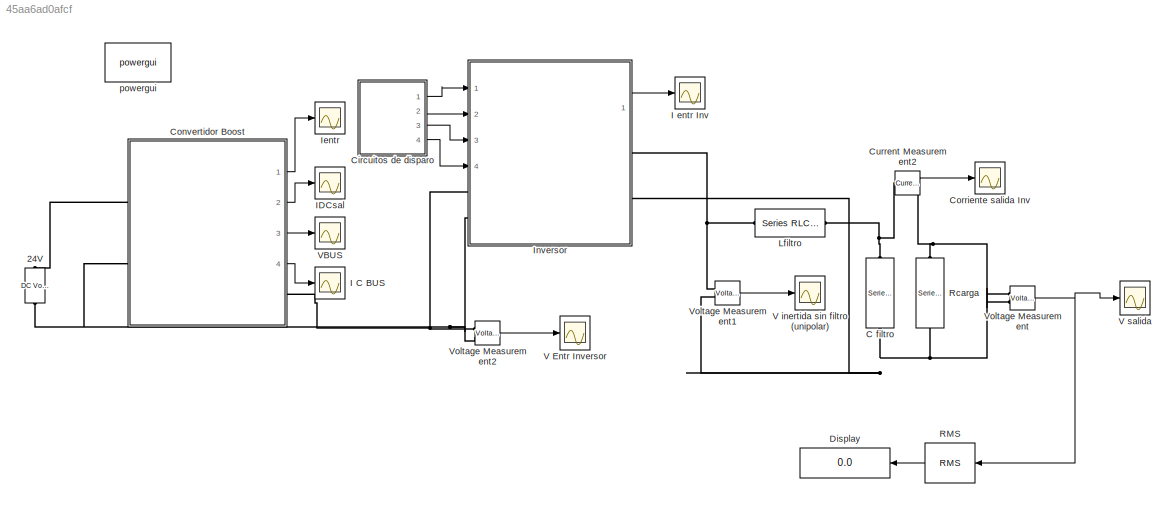
MODEL slx_45aa6ad0afcf
KIND model
BLOCK [Reference] 24V  REF=powerlib/Electrical
Sources/DC Voltage Source
  Amplitude = 24
  Measurements = None
  Ports = [0, 0, 0, 0, 0, 1, 1]
  SourceBlock = powerlib/Electrical\nSources/DC Voltage Source
  SourceType = DC Voltage Source
BLOCK [Reference] C filtro  REF=powerlib/Elements/Series RLC Branch
  BranchType = C
  Capacitance = 104.24e-9
  Inductance = 1e-3
  InitialCurrent = 0
  InitialVoltage = 0
  LConnTagsString = __new0
  Measurements = None
  Ports = [0, 0, 0, 0, 0, 1, 1]
  RConnTagsString = __new0
  Resistance = 1
  SetiL0 = off
  Setx0 = off
  SourceBlock = powerlib/Elements/Series RLC Branch
  SourceType = Series RLC Branch
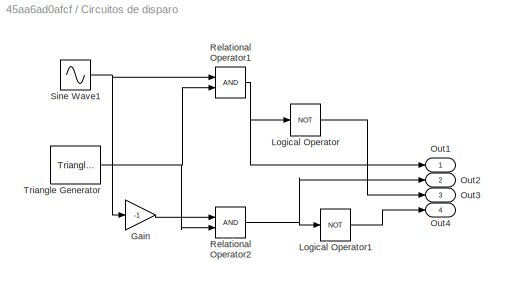
BLOCK [SubSystem] Circuitos de disparo
  FunctionWithSeparateData = off
  MaskHideContents = off
  MinAlgLoopOccurrences = off
  Opaque = off
  Ports = [0, 4]
  PropExecContextOutsideSubsystem = off
  RTWSystemCode = Auto
  RequestExecContextInheritance = off
BLOCK [Gain] Circuitos de disparo/Gain
  Gain = -1
  OutDataTypeStr = Inherit: Inherit via internal rule
  ParamDataTypeStr = Inherit: Inherit via internal rule
  SaturateOnIntegerOverflow = off
BLOCK [Logic] Circuitos de disparo/Logical Operator
  AllPortsSameDT = off
  Operator = NOT
  OutDataTypeStr = boolean
  Ports = [1, 1]
BLOCK [Logic] Circuitos de disparo/Logical Operator1
  AllPortsSameDT = off
  Operator = NOT
  OutDataTypeStr = boolean
  Ports = [1, 1]
BLOCK [Outport] Circuitos de disparo/Out1
  IconDisplay = Port number
BLOCK [Outport] Circuitos de disparo/Out2
  IconDisplay = Port number
  Port = 2
BLOCK [Outport] Circuitos de disparo/Out3
  IconDisplay = Port number
  Port = 3
BLOCK [Outport] Circuitos de disparo/Out4
  IconDisplay = Port number
  Port = 4
BLOCK [RelationalOperator] Circuitos de disparo/Relational Operator1
  InputSameDT = off
  OutDataTypeStr = boolean
  Ports = [2, 1]
BLOCK [RelationalOperator] Circuitos de disparo/Relational Operator2
  InputSameDT = off
  OutDataTypeStr = boolean
  Ports = [2, 1]
BLOCK [Sin] Circuitos de disparo/Sine Wave1
  Amplitude = 0.9
  Frequency = 2*pi*60
  Ports = [0, 1]
  SampleTime = 0
BLOCK [Reference] Circuitos de disparo/Triangle Generator  REF=powerlib_meascontrol/Pulse & Signal
Generators/Triangle
Generator
  Freq = 20000
  Phase = 90
  Ports = [0, 1]
  SourceBlock = powerlib_meascontrol/Pulse & Signal\nGenerators/Triangle\nGenerator
  SourceType = Triangle Generator
  Ts = 0
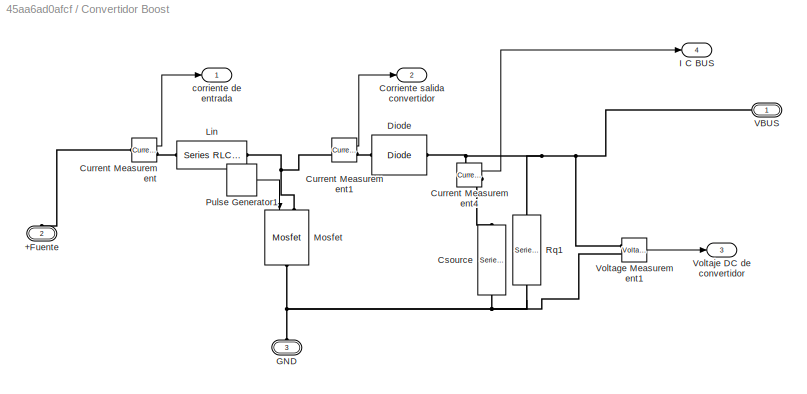
BLOCK [SubSystem] Convertidor Boost
  FunctionWithSeparateData = off
  MaskHideContents = off
  MinAlgLoopOccurrences = off
  Opaque = off
  Ports = [0, 4, 0, 0, 0, 2, 1]
  PropExecContextOutsideSubsystem = off
  RTWSystemCode = Auto
  RequestExecContextInheritance = off
BLOCK [PMIOPort] Convertidor Boost/+Fuente
  Port = 2
  Side = Left
BLOCK [Outport] Convertidor Boost/Corriente salida convertidor
  IconDisplay = Port number
  Port = 2
BLOCK [Reference] Convertidor Boost/Csource  REF=powerlib/Elements/Series RLC Branch
  BranchType = C
  Capacitance = 7.3142e-6
  Inductance = 1e-3
  InitialCurrent = 0
  InitialVoltage = 0
  LConnTagsString = __new0
  Measurements = None
  Ports = [0, 0, 0, 0, 0, 1, 1]
  RConnTagsString = __new0
  Resistance = 1
  SetiL0 = off
  Setx0 = off
  SourceBlock = powerlib/Elements/Series RLC Branch
  SourceType = Series RLC Branch
BLOCK [Reference] Convertidor Boost/Current Measurement  REF=powerlib/Measurements/Current Measurement
  OutputType = Complex
  PSBequivalent = 0
  PhasorSimulation = off
  Ports = [0, 1, 0, 0, 0, 1, 1]
  SourceBlock = powerlib/Measurements/Current Measurement
  SourceType = Current Measurement
BLOCK [Reference] Convertidor Boost/Current Measurement1  REF=powerlib/Measurements/Current Measurement
  OutputType = Complex
  PSBequivalent = 0
  PhasorSimulation = off
  Ports = [0, 1, 0, 0, 0, 1, 1]
  SourceBlock = powerlib/Measurements/Current Measurement
  SourceType = Current Measurement
BLOCK [Reference] Convertidor Boost/Current Measurement4  REF=powerlib/Measurements/Current Measurement
  OutputType = Complex
  PSBequivalent = 0
  PhasorSimulation = off
  Ports = [0, 1, 0, 0, 0, 1, 1]
  SourceBlock = powerlib/Measurements/Current Measurement
  SourceType = Current Measurement
BLOCK [Reference] Convertidor Boost/Diode  REF=powerlib/Power
Electronics/Diode
  Cs = 250e-9
  IC = 0
  Lon = 0
  Measurements = off
  Ports = [0, 0, 0, 0, 0, 1, 1]
  Ron = 0.001
  Rs = 500
  SourceBlock = powerlib/Power\nElectronics/Diode
  SourceType = Diode
  UseSnubber = off
  Vf = 0.2
BLOCK [PMIOPort] Convertidor Boost/GND
  Port = 3
  Side = Left
BLOCK [Outport] Convertidor Boost/I C BUS
  IconDisplay = Port number
  Port = 4
BLOCK [Reference] Convertidor Boost/Lin  REF=powerlib/Elements/Series RLC Branch
  BranchType = L
  Capacitance = 1e-6
  Inductance = 1.74658e-3
  InitialCurrent = 0
  InitialVoltage = 0
  LConnTagsString = __new0
  Measurements = None
  Ports = [0, 0, 0, 0, 0, 1, 1]
  RConnTagsString = __new0
  Resistance = 1
  SetiL0 = off
  Setx0 = off
  SourceBlock = powerlib/Elements/Series RLC Branch
  SourceType = Series RLC Branch
BLOCK [Reference] Convertidor Boost/Mosfet  REF=powerlib/Power
Electronics/Mosfet
  Cs = inf
  IC = 0
  Lon = 0
  Measurements = off
  Ports = [1, 0, 0, 0, 0, 1, 1]
  Rd = 0.0001
  Ron = 0.001
  Rs = 1e6
  SourceBlock = powerlib/Power\nElectronics/Mosfet
  SourceType = Mosfet
  Vfd = 0
BLOCK [DiscretePulseGenerator] Convertidor Boost/Pulse Generator1
  Period = 1/20000
  Ports = [0, 1]
  PulseType = Time based
  PulseWidth = 85
BLOCK [Reference] Convertidor Boost/Rq1  REF=powerlib/Elements/Series RLC Branch
  BranchType = R
  Capacitance = 1e-6
  Inductance = 1e-3
  InitialCurrent = 0
  InitialVoltage = 0
  LConnTagsString = __new0
  Measurements = None
  Ports = [0, 0, 0, 0, 0, 1, 1]
  RConnTagsString = __new0
  Resistance = 494
  SetiL0 = off
  Setx0 = off
  SourceBlock = powerlib/Elements/Series RLC Branch
  SourceType = Series RLC Branch
BLOCK [PMIOPort] Convertidor Boost/VBUS
  Port = 1
  Side = Right
BLOCK [Reference] Convertidor Boost/Voltage Measurement1  REF=powerlib/Measurements/Voltage Measurement
  OutputType = Complex
  PSBequivalent = 0
  PhasorSimulation = off
  Ports = [0, 1, 0, 0, 0, 2]
  SourceBlock = powerlib/Measurements/Voltage Measurement
  SourceType = Voltage Measurement
BLOCK [Outport] Convertidor Boost/Voltaje DC de convertidor
  IconDisplay = Port number
  Port = 3
BLOCK [Outport] Convertidor Boost/corriente de entrada
  IconDisplay = Port number
BLOCK [Scope] Corriente salida Inv
  Floating = off
  MaxDataPoints = 500000
  NumInputPorts = 1
  Ports = [1]
  SampleTime = 0
  SaveName = ScopeData5
  SaveToWorkspace = on
  ShowLegends = off
BLOCK [Reference] Current Measurement2  REF=powerlib/Measurements/Current Measurement
  OutputType = Complex
  PSBequivalent = 0
  PhasorSimulation = off
  Ports = [0, 1, 0, 0, 0, 1, 1]
  SourceBlock = powerlib/Measurements/Current Measurement
  SourceType = Current Measurement
BLOCK [Display] Display
  Decimation = 1
  Lockdown = off
  Ports = [1]
BLOCK [Scope] I C BUS
  Floating = off
  MaxDataPoints = 5000000
  NumInputPorts = 1
  Ports = [1]
  SampleTime = 0
  SaveName = ScopeData7
  SaveToWorkspace = on
  ShowLegends = off
  TimeRange = 0.004770167640737899
  YMax = 199.7217120353623
  YMin = 198.7058285790732
BLOCK [Scope] I entr Inv
  Floating = off
  MaxDataPoints = 500000
  NumInputPorts = 1
  Ports = [1]
  SampleTime = 0
  SaveName = ScopeData4
  SaveToWorkspace = on
  ShowLegends = off
BLOCK [Scope] IDCsal
  Floating = off
  MaxDataPoints = 500000
  NumInputPorts = 1
  Ports = [1]
  SampleTime = 0
  SaveName = ScopeData3
  SaveToWorkspace = on
  ShowLegends = off
BLOCK [Scope] Ientr
  Floating = off
  MaxDataPoints = 500000
  NumInputPorts = 1
  Ports = [1]
  SampleTime = 0
  SaveName = ScopeData2
  SaveToWorkspace = on
  ShowLegends = off
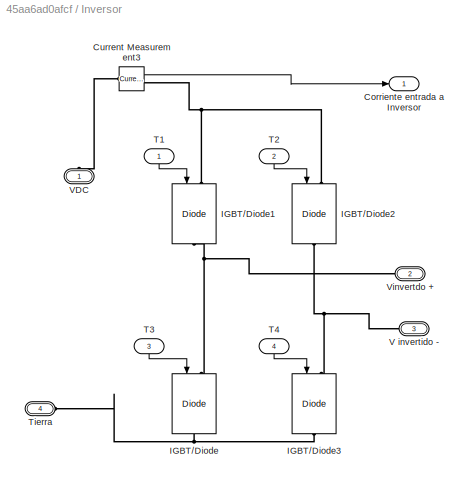
BLOCK [SubSystem] Inversor
  FunctionWithSeparateData = off
  MaskHideContents = off
  MinAlgLoopOccurrences = off
  Opaque = off
  Ports = [4, 1, 0, 0, 0, 2, 2]
  PropExecContextOutsideSubsystem = off
  RTWSystemCode = Auto
  RequestExecContextInheritance = off
BLOCK [Outport] Inversor/Corriente entrada a Inversor
  IconDisplay = Port number
BLOCK [Reference] Inversor/Current Measurement3  REF=powerlib/Measurements/Current Measurement
  OutputType = Complex
  PSBequivalent = 0
  PhasorSimulation = off
  Ports = [0, 1, 0, 0, 0, 1, 1]
  SourceBlock = powerlib/Measurements/Current Measurement
  SourceType = Current Measurement
BLOCK [Reference] Inversor/IGBT//Diode  REF=powerlib/Power
Electronics/IGBT//Diode
  Cs = inf
  Measurements = off
  Ports = [1, 0, 0, 0, 0, 1, 1]
  Ron = 1e-3
  Rs = 1e5
  SourceBlock = powerlib/Power\nElectronics/IGBT//Diode
  SourceType = IGBT/Diode
BLOCK [Reference] Inversor/IGBT//Diode1  REF=powerlib/Power
Electronics/IGBT//Diode
  Cs = inf
  Measurements = off
  Ports = [1, 0, 0, 0, 0, 1, 1]
  Ron = 1e-3
  Rs = 1e5
  SourceBlock = powerlib/Power\nElectronics/IGBT//Diode
  SourceType = IGBT/Diode
BLOCK [Reference] Inversor/IGBT//Diode2  REF=powerlib/Power
Electronics/IGBT//Diode
  Cs = inf
  Measurements = off
  Ports = [1, 0, 0, 0, 0, 1, 1]
  Ron = 1e-3
  Rs = 1e5
  SourceBlock = powerlib/Power\nElectronics/IGBT//Diode
  SourceType = IGBT/Diode
BLOCK [Reference] Inversor/IGBT//Diode3  REF=powerlib/Power
Electronics/IGBT//Diode
  Cs = inf
  Measurements = off
  Ports = [1, 0, 0, 0, 0, 1, 1]
  Ron = 1e-3
  Rs = 1e5
  SourceBlock = powerlib/Power\nElectronics/IGBT//Diode
  SourceType = IGBT/Diode
BLOCK [Inport] Inversor/T1
  IconDisplay = Port number
BLOCK [Inport] Inversor/T2
  IconDisplay = Port number
  Port = 2
BLOCK [Inport] Inversor/T3
  IconDisplay = Port number
  Port = 3
BLOCK [Inport] Inversor/T4
  IconDisplay = Port number
  Port = 4
BLOCK [PMIOPort] Inversor/Tierra
  Port = 4
  Side = Left
BLOCK [PMIOPort] Inversor/V invertido -
  Port = 3
  Side = Right
BLOCK [PMIOPort] Inversor/VDC
  Port = 1
  Side = Left
BLOCK [PMIOPort] Inversor/Vinvertdo +
  Port = 2
  Side = Right
BLOCK [Reference] Lfiltro  REF=powerlib/Elements/Series RLC Branch
  BranchType = L
  Capacitance = 1e-6
  Inductance = 0.3
  InitialCurrent = 0
  InitialVoltage = 0
  LConnTagsString = __new0
  Measurements = None
  Ports = [0, 0, 0, 0, 0, 1, 1]
  RConnTagsString = __new0
  Resistance = 1
  SetiL0 = off
  Setx0 = off
  SourceBlock = powerlib/Elements/Series RLC Branch
  SourceType = Series RLC Branch
BLOCK [Reference] RMS  REF=powerlib_meascontrol/Measurements/RMS
  Freq = 60
  Ports = [1, 1]
  RMSInit = 120
  SourceBlock = powerlib_meascontrol/Measurements/RMS
  SourceType = RMS
  TrueRMS = on
  Ts = 0
BLOCK [Reference] Rcarga  REF=powerlib/Elements/Series RLC Branch
  BranchType = RL
  Capacitance = 1e-6
  Inductance = 1.1836
  InitialCurrent = 0
  InitialVoltage = 0
  LConnTagsString = __new0
  Measurements = None
  Ports = [0, 0, 0, 0, 0, 1, 1]
  RConnTagsString = __new0
  Resistance = 720
  SetiL0 = off
  Setx0 = off
  SourceBlock = powerlib/Elements/Series RLC Branch
  SourceType = Series RLC Branch
BLOCK [Scope] V Entr Inversor
  Floating = off
  MaxDataPoints = 500000
  NumInputPorts = 1
  Ports = [1]
  SampleTime = 0
  SaveName = ScopeData6
  SaveToWorkspace = on
  ShowLegends = off
BLOCK [Scope] V inertida sin filtro (unipolar)
  Floating = off
  MaxDataPoints = 500000
  NumInputPorts = 1
  Ports = [1]
  SampleTime = 0
  SaveName = ScopeData8
  SaveToWorkspace = on
  ShowLegends = off
BLOCK [Scope] V salida
  Floating = off
  MaxDataPoints = 500000
  NumInputPorts = 1
  Ports = [1]
  SampleTime = 0
  SaveToWorkspace = on
  ShowLegends = off
BLOCK [Scope] VBUS
  Floating = off
  MaxDataPoints = 5000000
  NumInputPorts = 1
  Ports = [1]
  SampleTime = 0
  SaveName = ScopeData1
  SaveToWorkspace = on
  ShowLegends = off
  TimeRange = 0.004770167640737899
  YMax = 199.7217120353623
  YMin = 198.7058285790732
BLOCK [Reference] Voltage Measurement  REF=powerlib/Measurements/Voltage Measurement
  OutputType = Complex
  PSBequivalent = 0
  PhasorSimulation = off
  Ports = [0, 1, 0, 0, 0, 2]
  SourceBlock = powerlib/Measurements/Voltage Measurement
  SourceType = Voltage Measurement
BLOCK [Reference] Voltage Measurement1  REF=powerlib/Measurements/Voltage Measurement
  OutputType = Complex
  PSBequivalent = 0
  PhasorSimulation = off
  Ports = [0, 1, 0, 0, 0, 2]
  SourceBlock = powerlib/Measurements/Voltage Measurement
  SourceType = Voltage Measurement
BLOCK [Reference] Voltage Measurement2  REF=powerlib/Measurements/Voltage Measurement
  OutputType = Complex
  PSBequivalent = 0
  PhasorSimulation = off
  Ports = [0, 1, 0, 0, 0, 2]
  SourceBlock = powerlib/Measurements/Voltage Measurement
  SourceType = Voltage Measurement
BLOCK [Reference] powergui  REF=powerlib/powergui
  DisableRonSwitches = off
  DisableSnubberDevices = off
  DisableVfSwitches = off
  DisplayEquations = off
  DisplayStyle = 1
  EnableUseOfTLC = off
  ErrMax = 1e-4
  Frange = [0:2:500]
  FreqAxis = off
  FunctionMessages = off
  HookPort = off
  Interpol = off
  Iterations = 50
  MaxFrequency = 1000
  Pbase = 100e6
  Ports = []
  Priority = 1
  ResistiveCurrentMeasurement = off
  RestoreLinks = warning
  RmsSteady = 1
  SPID = off
  SampleTime = 2e-6
  ShowGrid = off
  SolverType = Tustin
  SourceBlock = powerlib/powergui
  SourceType = PSB option menu block
  StartTime = 0.0
  SwTol = 0
  Ts = 0
  UnitsV = kV
  UnitsW = MW
  UserDataPersistent = on
  Xlog = on
  Ylog = off
  ZoomFFT = off
  cycles = 1
  display = off
  echomessages = off
  frequency = 60
  frequencyindice = 0
  frequencyindicesteady = 1
  fundamental = 60
  methode = off
  save = off
  variable = ZData
  x0status = blocks
LINE Circuitos de disparo/Gain:1 -> Circuitos de disparo/Relational Operator2:1
LINE Circuitos de disparo/Logical Operator1:1 -> Circuitos de disparo/Out4:1
LINE Circuitos de disparo/Logical Operator:1 -> Circuitos de disparo/Out3:1
NET Circuitos de disparo/Relational Operator1:1 -> Circuitos de disparo/Logical Operator:1, Circuitos de disparo/Out1:1
NET Circuitos de disparo/Relational Operator2:1 -> Circuitos de disparo/Logical Operator1:1, Circuitos de disparo/Out2:1
NET Circuitos de disparo/Sine Wave1:1 -> Circuitos de disparo/Gain:1, Circuitos de disparo/Relational Operator1:1
NET Circuitos de disparo/Triangle Generator:1 -> Circuitos de disparo/Relational Operator1:2, Circuitos de disparo/Relational Operator2:2
LINE Circuitos de disparo:1 -> Inversor:1
LINE Circuitos de disparo:2 -> Inversor:2
LINE Circuitos de disparo:3 -> Inversor:3
LINE Circuitos de disparo:4 -> Inversor:4
LINE Convertidor Boost/Current Measurement1:1 -> Convertidor Boost/Corriente salida convertidor:1
LINE Convertidor Boost/Current Measurement4:1 -> Convertidor Boost/I C BUS:1
LINE Convertidor Boost/Current Measurement:1 -> Convertidor Boost/corriente de entrada:1
LINE Convertidor Boost/Pulse Generator1:1 -> Convertidor Boost/Mosfet:1
LINE Convertidor Boost/Voltage Measurement1:1 -> Convertidor Boost/Voltaje DC de convertidor:1
LINE Convertidor Boost:1 -> Ientr:1
LINE Convertidor Boost:2 -> IDCsal:1
LINE Convertidor Boost:3 -> VBUS:1
LINE Convertidor Boost:4 -> I C BUS:1
LINE Current Measurement2:1 -> Corriente salida Inv:1
LINE Inversor/Current Measurement3:1 -> Inversor/Corriente entrada a Inversor:1
LINE Inversor/T1:1 -> Inversor/IGBT//Diode1:1
LINE Inversor/T2:1 -> Inversor/IGBT//Diode2:1
LINE Inversor/T3:1 -> Inversor/IGBT//Diode:1
LINE Inversor/T4:1 -> Inversor/IGBT//Diode3:1
LINE Inversor:1 -> I entr Inv:1
LINE RMS:1 -> Display:1
LINE Voltage Measurement1:1 -> V inertida sin filtro (unipolar):1
LINE Voltage Measurement2:1 -> V Entr Inversor:1
NET Voltage Measurement:1 -> RMS:1, V salida:1
PNET net1: 24V:LConn1 -- Convertidor Boost:LConn2 -- Inversor:LConn2 -- Voltage Measurement2:LConn2
PLINE 24V:RConn1 -- Convertidor Boost:LConn1
PNET net2: C filtro:LConn1 -- Current Measurement2:LConn1 -- Lfiltro:RConn1
PNET net3: C filtro:RConn1 -- Inversor:RConn2 -- Rcarga:RConn1 -- Voltage Measurement1:LConn2 -- Voltage Measurement:LConn2
PLINE Convertidor Boost/+Fuente:RConn1 -- Convertidor Boost/Current Measurement:LConn1
PLINE Convertidor Boost/Csource:LConn1 -- Convertidor Boost/Current Measurement4:RConn1
PNET net4: Convertidor Boost/Csource:RConn1 -- Convertidor Boost/GND:RConn1 -- Convertidor Boost/Mosfet:RConn1 -- Convertidor Boost/Rq1:RConn1 -- Convertidor Boost/Voltage Measurement1:LConn2
PNET net5: Convertidor Boost/Current Measurement1:LConn1 -- Convertidor Boost/Lin:RConn1 -- Convertidor Boost/Mosfet:LConn1
PLINE Convertidor Boost/Current Measurement1:RConn1 -- Convertidor Boost/Diode:LConn1
PNET net6: Convertidor Boost/Current Measurement4:LConn1 -- Convertidor Boost/Diode:RConn1 -- Convertidor Boost/Rq1:LConn1 -- Convertidor Boost/VBUS:RConn1 -- Convertidor Boost/Voltage Measurement1:LConn1
PLINE Convertidor Boost/Current Measurement:RConn1 -- Convertidor Boost/Lin:LConn1
PNET net7: Convertidor Boost:RConn1 -- Inversor:LConn1 -- Voltage Measurement2:LConn1
PNET net8: Current Measurement2:RConn1 -- Rcarga:LConn1 -- Voltage Measurement:LConn1
PLINE Inversor/Current Measurement3:LConn1 -- Inversor/VDC:RConn1
PNET net9: Inversor/Current Measurement3:RConn1 -- Inversor/IGBT//Diode1:LConn1 -- Inversor/IGBT//Diode2:LConn1
PNET net10: Inversor/IGBT//Diode1:RConn1 -- Inversor/IGBT//Diode:LConn1 -- Inversor/Vinvertdo +:RConn1
PNET net11: Inversor/IGBT//Diode2:RConn1 -- Inversor/IGBT//Diode3:LConn1 -- Inversor/V invertido -:RConn1
PNET net12: Inversor/IGBT//Diode3:RConn1 -- Inversor/IGBT//Diode:RConn1 -- Inversor/Tierra:RConn1
PNET net13: Inversor:RConn1 -- Lfiltro:LConn1 -- Voltage Measurement1:LConn1
note: NET lines group one-source signal fan-out (src -> all destinations, sorted); 1:1 wires keep LINE; PNET lines group multi-terminal physical nets as a canonical sorted terminal list (undirected conserving connections); 2-terminal nets keep the pairwise PLINE form
